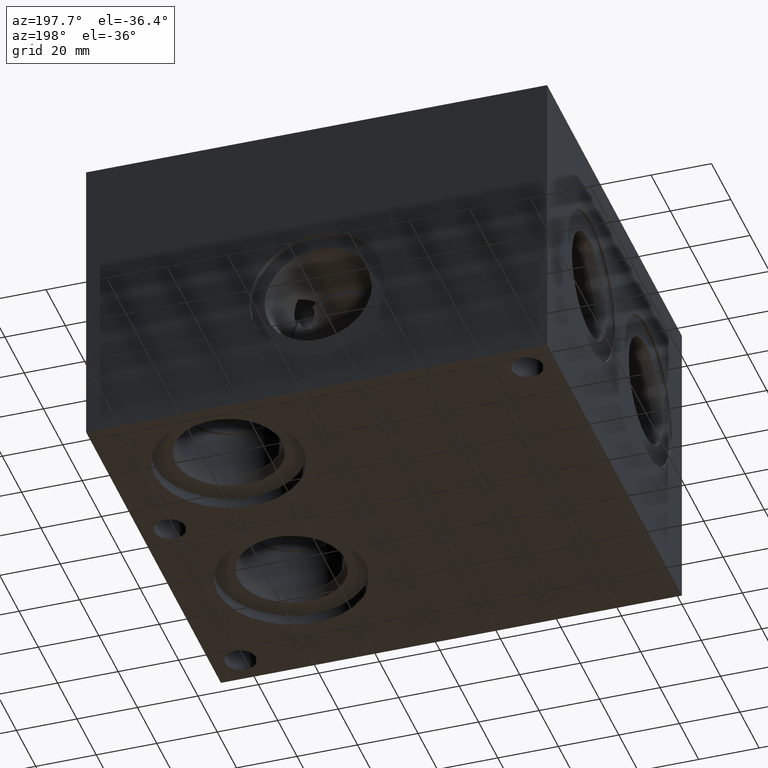
[diagram: clean part render]
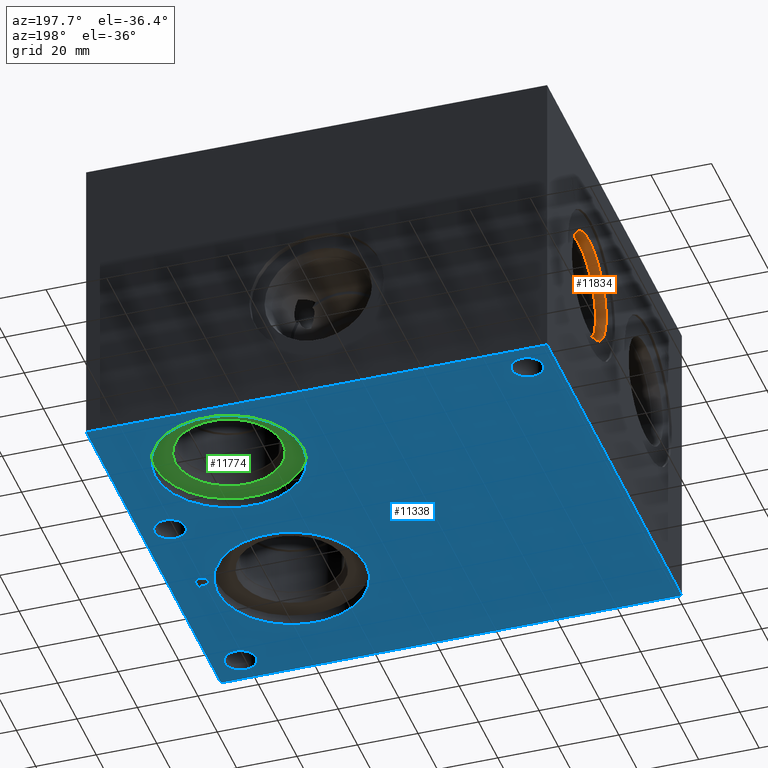
[diagram: same view with three faces highlighted in distinct colors, each labeled with its STEP entity id]
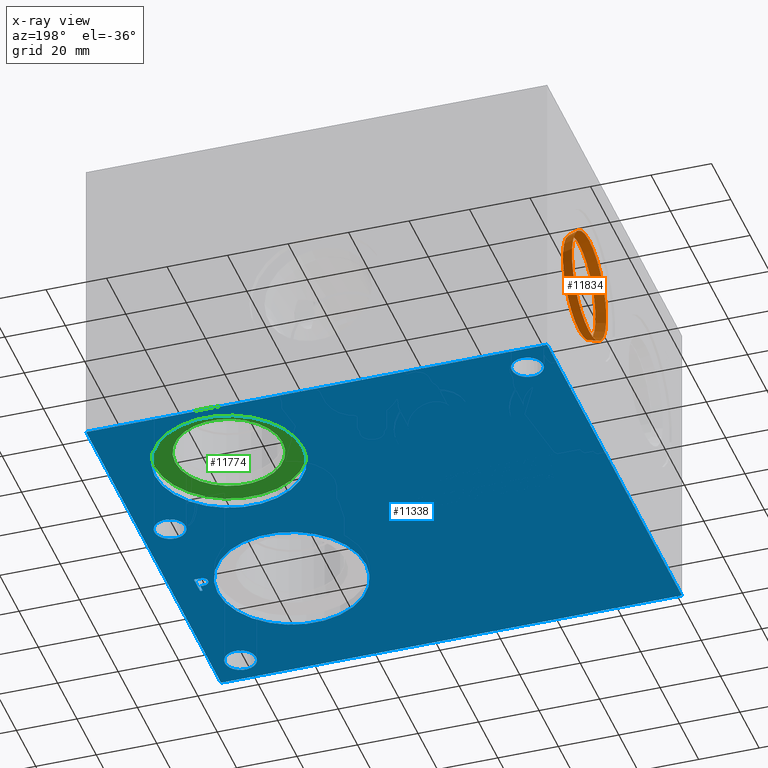
[diagram: x-ray of the same camera — body ghosted, the three highlighted faces saturated]
A machine part, auxiliary view with three faces highlighted in distinct colors.
The next image is the same camera in x-ray (body ghosted, the three faces saturated) — at least one of them is partly hidden behind the body in this view.
Their STEP definitions:

[orange] entity #11834 — the highlighted conical surface has half-angle 15 deg.
#37=CONICAL_SURFACE('',#12439,17.31645,0.261799389532319);
#260=CIRCLE('',#12437,17.7546);
#261=CIRCLE('',#12438,17.7546);
#262=CIRCLE('',#12440,16.8783);
#263=CIRCLE('',#12441,16.8783);
#1371=FACE_OUTER_BOUND('',#2044,.T.);
#2044=EDGE_LOOP('',(#10235,#10236,#10237,#10238,#10239,#10240));
#3188=LINE('',#20089,#4277);
#4277=VECTOR('',#14696,17.31645);
#5600=VERTEX_POINT('',#20083);
#5601=VERTEX_POINT('',#20084);
#5602=VERTEX_POINT('',#20088);
#5603=VERTEX_POINT('',#20090);
#7197=EDGE_CURVE('',#5600,#5601,#260,.T.);
#7198=EDGE_CURVE('',#5601,#5600,#261,.T.);
#7199=EDGE_CURVE('',#5601,#5602,#3188,.T.);
#7200=EDGE_CURVE('',#5602,#5603,#262,.T.);
#7201=EDGE_CURVE('',#5603,#5602,#263,.T.);
#10235=ORIENTED_EDGE('',*,*,#7197,.F.);
#10236=ORIENTED_EDGE('',*,*,#7198,.F.);
#10237=ORIENTED_EDGE('',*,*,#7199,.T.);
#10238=ORIENTED_EDGE('',*,*,#7200,.T.);
#10239=ORIENTED_EDGE('',*,*,#7201,.T.);
#10240=ORIENTED_EDGE('',*,*,#7199,.F.);
#11834=ADVANCED_FACE('',(#1371),#37,.F.);
#12437=AXIS2_PLACEMENT_3D('',#20085,#14690,#14691);
#12438=AXIS2_PLACEMENT_3D('',#20086,#14692,#14693);
#12439=AXIS2_PLACEMENT_3D('',#20087,#14694,#14695);
#12440=AXIS2_PLACEMENT_3D('',#20091,#14697,#14698);
#12441=AXIS2_PLACEMENT_3D('',#20092,#14699,#14700);
#14690=DIRECTION('center_axis',(1.,0.,0.));
#14691=DIRECTION('ref_axis',(0.,0.,-1.));
#14692=DIRECTION('center_axis',(1.,0.,0.));
#14693=DIRECTION('ref_axis',(0.,0.,-1.));
#14694=DIRECTION('center_axis',(-1.,0.,0.));
#14695=DIRECTION('ref_axis',(0.,0.,1.));
#14696=DIRECTION('',(0.965925825840491,-3.16961917193374E-17,0.258819046776634));
#14697=DIRECTION('center_axis',(1.,0.,0.));
#14698=DIRECTION('ref_axis',(0.,0.,-1.));
#14699=DIRECTION('center_axis',(1.,0.,0.));
#14700=DIRECTION('ref_axis',(0.,0.,-1.));
#20083=CARTESIAN_POINT('',(0.7874,93.6752,73.3298));
#20084=CARTESIAN_POINT('',(0.787399999999999,93.6752,37.8206));
#20085=CARTESIAN_POINT('Origin',(0.7874,93.6752,55.5752));
#20086=CARTESIAN_POINT('Origin',(0.7874,93.6752,55.5752));
#20087=CARTESIAN_POINT('Origin',(2.42259805,93.6752,55.5752));
#20088=CARTESIAN_POINT('',(4.0577961,93.6752,38.6969));
#20089=CARTESIAN_POINT('',(2.42259805,93.6752,38.25875));
#20090=CARTESIAN_POINT('',(4.0577961,93.6752,72.4535));
#20091=CARTESIAN_POINT('Origin',(4.0577961,93.6752,55.5752));
#20092=CARTESIAN_POINT('Origin',(4.0577961,93.6752,55.5752));

[blue] entity #11338 — the highlighted planar face has unit normal (0, 0, 1).
#140=CIRCLE('',#11955,5.1562);
#141=CIRCLE('',#11956,5.1562);
#142=CIRCLE('',#11957,5.1562);
#143=CIRCLE('',#11958,24.5618);
#144=CIRCLE('',#11959,24.5618);
#145=CIRCLE('',#11960,24.5618);
#146=CIRCLE('',#11961,24.5618);
#418=FACE_BOUND('',#1487,.T.);
#419=FACE_BOUND('',#1488,.T.);
#420=FACE_BOUND('',#1489,.T.);
#421=FACE_BOUND('',#1490,.T.);
#422=FACE_BOUND('',#1491,.T.);
#423=FACE_BOUND('',#1492,.T.);
#523=PLANE('',#11954);
#875=FACE_OUTER_BOUND('',#1486,.T.);
#1486=EDGE_LOOP('',(#7510,#7511,#7512,#7513));
#1487=EDGE_LOOP('',(#7514));
#1488=EDGE_LOOP('',(#7515));
#1489=EDGE_LOOP('',(#7516));
#1490=EDGE_LOOP('',(#7517,#7518));
#1491=EDGE_LOOP('',(#7519,#7520));
#1492=EDGE_LOOP('',(#7521,#7522,#7523,#7524,#7525,#7526,#7527,#7528,#7529));
#2191=LINE('',#15412,#3280);
#2194=LINE('',#15418,#3283);
#2197=LINE('',#15424,#3286);
#2200=LINE('',#15430,#3289);
#2203=LINE('',#15436,#3292);
#2207=LINE('',#15479,#3296);
#2208=LINE('',#15481,#3297);
#2209=LINE('',#15483,#3298);
#2210=LINE('',#15484,#3299);
#3280=VECTOR('',#12717,10.);
#3283=VECTOR('',#12722,10.);
#3286=VECTOR('',#12727,10.);
#3289=VECTOR('',#12732,10.);
#3292=VECTOR('',#12737,10.);
#3296=VECTOR('',#12745,10.);
#3297=VECTOR('',#12746,10.);
#3298=VECTOR('',#12747,10.);
#3299=VECTOR('',#12748,10.);
#4361=B_SPLINE_CURVE_WITH_KNOTS('',2,(#15379,#15380,#15381,#15382),
 .UNSPECIFIED.,.F.,.F.,(3,1,3),(0.,1.,2.),.UNSPECIFIED.);
#4363=B_SPLINE_CURVE_WITH_KNOTS('',2,(#15400,#15401,#15402,#15403),
 .UNSPECIFIED.,.F.,.F.,(3,1,3),(0.,1.,2.),.UNSPECIFIED.);
#4365=B_SPLINE_CURVE_WITH_KNOTS('',2,(#15449,#15450,#15451,#15452),
 .UNSPECIFIED.,.F.,.F.,(3,1,3),(0.,1.,2.),.UNSPECIFIED.);
#4367=B_SPLINE_CURVE_WITH_KNOTS('',2,(#15467,#15468,#15469,#15470),
 .UNSPECIFIED.,.F.,.F.,(3,1,3),(0.,1.,2.),.UNSPECIFIED.);
#4655=VERTEX_POINT('',#15377);
#4656=VERTEX_POINT('',#15378);
#4659=VERTEX_POINT('',#15399);
#4661=VERTEX_POINT('',#15411);
#4663=VERTEX_POINT('',#15417);
#4665=VERTEX_POINT('',#15423);
#4667=VERTEX_POINT('',#15429);
#4669=VERTEX_POINT('',#15435);
#4671=VERTEX_POINT('',#15448);
#4673=VERTEX_POINT('',#15477);
#4674=VERTEX_POINT('',#15478);
#4675=VERTEX_POINT('',#15480);
#4676=VERTEX_POINT('',#15482);
#4677=VERTEX_POINT('',#15485);
#4678=VERTEX_POINT('',#15487);
#4679=VERTEX_POINT('',#15489);
#4680=VERTEX_POINT('',#15491);
#4681=VERTEX_POINT('',#15492);
#4682=VERTEX_POINT('',#15495);
#4683=VERTEX_POINT('',#15496);
#5796=EDGE_CURVE('',#4655,#4656,#4361,.T.);
#5800=EDGE_CURVE('',#4659,#4655,#4363,.T.);
#5803=EDGE_CURVE('',#4661,#4659,#2191,.T.);
#5806=EDGE_CURVE('',#4663,#4661,#2194,.T.);
#5809=EDGE_CURVE('',#4665,#4663,#2197,.T.);
#5812=EDGE_CURVE('',#4667,#4665,#2200,.T.);
#5815=EDGE_CURVE('',#4669,#4667,#2203,.T.);
#5818=EDGE_CURVE('',#4671,#4669,#4365,.T.);
#5821=EDGE_CURVE('',#4656,#4671,#4367,.T.);
#5823=EDGE_CURVE('',#4673,#4674,#2207,.T.);
#5824=EDGE_CURVE('',#4675,#4673,#2208,.T.);
#5825=EDGE_CURVE('',#4676,#4675,#2209,.T.);
#5826=EDGE_CURVE('',#4674,#4676,#2210,.T.);
#5827=EDGE_CURVE('',#4677,#4677,#140,.T.);
#5828=EDGE_CURVE('',#4678,#4678,#141,.T.);
#5829=EDGE_CURVE('',#4679,#4679,#142,.T.);
#5830=EDGE_CURVE('',#4680,#4681,#143,.T.);
#5831=EDGE_CURVE('',#4681,#4680,#144,.T.);
#5832=EDGE_CURVE('',#4682,#4683,#145,.T.);
#5833=EDGE_CURVE('',#4683,#4682,#146,.T.);
#7510=ORIENTED_EDGE('',*,*,#5823,.F.);
#7511=ORIENTED_EDGE('',*,*,#5824,.F.);
#7512=ORIENTED_EDGE('',*,*,#5825,.F.);
#7513=ORIENTED_EDGE('',*,*,#5826,.F.);
#7514=ORIENTED_EDGE('',*,*,#5827,.T.);
#7515=ORIENTED_EDGE('',*,*,#5828,.T.);
#7516=ORIENTED_EDGE('',*,*,#5829,.T.);
#7517=ORIENTED_EDGE('',*,*,#5830,.T.);
#7518=ORIENTED_EDGE('',*,*,#5831,.T.);
#7519=ORIENTED_EDGE('',*,*,#5832,.T.);
#7520=ORIENTED_EDGE('',*,*,#5833,.T.);
#7521=ORIENTED_EDGE('',*,*,#5796,.T.);
#7522=ORIENTED_EDGE('',*,*,#5821,.T.);
#7523=ORIENTED_EDGE('',*,*,#5818,.T.);
#7524=ORIENTED_EDGE('',*,*,#5815,.T.);
#7525=ORIENTED_EDGE('',*,*,#5812,.T.);
#7526=ORIENTED_EDGE('',*,*,#5809,.T.);
#7527=ORIENTED_EDGE('',*,*,#5806,.T.);
#7528=ORIENTED_EDGE('',*,*,#5803,.T.);
#7529=ORIENTED_EDGE('',*,*,#5800,.T.);
#11338=ADVANCED_FACE('',(#875,#418,#419,#420,#421,#422,#423),#523,.F.);
#11954=AXIS2_PLACEMENT_3D('',#15476,#12743,#12744);
#11955=AXIS2_PLACEMENT_3D('',#15486,#12749,#12750);
#11956=AXIS2_PLACEMENT_3D('',#15488,#12751,#12752);
#11957=AXIS2_PLACEMENT_3D('',#15490,#12753,#12754);
#11958=AXIS2_PLACEMENT_3D('',#15493,#12755,#12756);
#11959=AXIS2_PLACEMENT_3D('',#15494,#12757,#12758);
#11960=AXIS2_PLACEMENT_3D('',#15497,#12759,#12760);
#11961=AXIS2_PLACEMENT_3D('',#15498,#12761,#12762);
#12717=DIRECTION('',(-1.,-1.11355060845355E-14,0.));
#12722=DIRECTION('',(-2.79741238752512E-15,1.,0.));
#12727=DIRECTION('',(1.,2.10488224768655E-14,0.));
#12732=DIRECTION('',(0.,-1.,0.));
#12737=DIRECTION('',(1.,0.,0.));
#12743=DIRECTION('center_axis',(0.,0.,1.));
#12744=DIRECTION('ref_axis',(1.,0.,0.));
#12745=DIRECTION('',(1.,0.,0.));
#12746=DIRECTION('',(0.,-1.,0.));
#12747=DIRECTION('',(-1.,0.,0.));
#12748=DIRECTION('',(0.,1.,0.));
#12749=DIRECTION('center_axis',(0.,0.,1.));
#12750=DIRECTION('ref_axis',(1.,0.,0.));
#12751=DIRECTION('center_axis',(0.,0.,1.));
#12752=DIRECTION('ref_axis',(1.,0.,0.));
#12753=DIRECTION('center_axis',(0.,0.,1.));
#12754=DIRECTION('ref_axis',(1.,0.,0.));
#12755=DIRECTION('center_axis',(0.,0.,1.));
#12756=DIRECTION('ref_axis',(1.,0.,0.));
#12757=DIRECTION('center_axis',(0.,0.,1.));
#12758=DIRECTION('ref_axis',(1.,0.,0.));
#12759=DIRECTION('center_axis',(0.,0.,1.));
#12760=DIRECTION('ref_axis',(1.,0.,0.));
#12761=DIRECTION('center_axis',(0.,0.,1.));
#12762=DIRECTION('ref_axis',(1.,0.,0.));
#15377=CARTESIAN_POINT('',(140.561932797641,54.3725181439707,0.));
#15378=CARTESIAN_POINT('',(139.805490345468,52.8544873726039,0.));
#15379=CARTESIAN_POINT('Ctrl Pts',(140.561932797641,54.3725181439707,0.));
#15380=CARTESIAN_POINT('Ctrl Pts',(140.206867973151,54.1306623939563,0.));
#15381=CARTESIAN_POINT('Ctrl Pts',(139.805490345468,53.3845116758269,0.));
#15382=CARTESIAN_POINT('Ctrl Pts',(139.805490345468,52.8544873726039,0.));
#15399=CARTESIAN_POINT('',(142.224047845612,54.7687499046325,0.));
#15400=CARTESIAN_POINT('Ctrl Pts',(142.224047845612,54.7687499046325,0.));
#15401=CARTESIAN_POINT('Ctrl Pts',(141.658002473238,54.7687499046325,0.));
#15402=CARTESIAN_POINT('Ctrl Pts',(140.865538951914,54.5834986918556,0.));
#15403=CARTESIAN_POINT('Ctrl Pts',(140.561932797641,54.3725181439707,0.));
#15411=CARTESIAN_POINT('',(143.819266622302,54.7687499046326,0.));
#15412=CARTESIAN_POINT('',(110.009633311151,54.7687499046322,0.));
#15417=CARTESIAN_POINT('',(143.819266622302,48.41875,0.));
#15418=CARTESIAN_POINT('',(143.819266622302,59.1343750000001,0.));
#15423=CARTESIAN_POINT('',(142.975344430763,48.41875,0.));
#15424=CARTESIAN_POINT('',(109.587672215382,48.4187499999993,0.));
#15429=CARTESIAN_POINT('',(142.975344430763,50.7858488299278,0.));
#15430=CARTESIAN_POINT('',(142.975344430763,60.3179244149639,0.));
#15435=CARTESIAN_POINT('',(142.260068914763,50.7858488299278,0.));
#15436=CARTESIAN_POINT('',(109.230034457381,50.7858488299278,0.));
#15448=CARTESIAN_POINT('',(140.361243983799,51.4445198086904,0.));
#15449=CARTESIAN_POINT('Ctrl Pts',(140.361243983799,51.4445198086904,0.));
#15450=CARTESIAN_POINT('Ctrl Pts',(140.69057947318,51.1203301863307,0.));
#15451=CARTESIAN_POINT('Ctrl Pts',(141.580814467914,50.7858488299278,0.));
#15452=CARTESIAN_POINT('Ctrl Pts',(142.260068914763,50.7858488299278,0.));
#15467=CARTESIAN_POINT('Ctrl Pts',(139.805490345468,52.8544873726039,0.));
#15468=CARTESIAN_POINT('Ctrl Pts',(139.805490345468,52.4428180108773,0.));
#15469=CARTESIAN_POINT('Ctrl Pts',(140.098804765698,51.7018131597695,0.));
#15470=CARTESIAN_POINT('Ctrl Pts',(140.361243983799,51.4445198086904,0.));
#15476=CARTESIAN_POINT('Origin',(76.2,69.85,0.));
#15477=CARTESIAN_POINT('',(0.,0.,0.));
#15478=CARTESIAN_POINT('',(152.4,0.,0.));
#15479=CARTESIAN_POINT('',(0.,0.,0.));
#15480=CARTESIAN_POINT('',(0.,139.7,0.));
#15481=CARTESIAN_POINT('',(0.,139.7,0.));
#15482=CARTESIAN_POINT('',(152.4,139.7,0.));
#15483=CARTESIAN_POINT('',(152.4,139.7,0.));
#15484=CARTESIAN_POINT('',(152.4,0.,0.));
#15485=CARTESIAN_POINT('',(4.3688,130.175,0.));
#15486=CARTESIAN_POINT('Origin',(9.525,130.175,0.));
#15487=CARTESIAN_POINT('',(137.7188,9.525,0.));
#15488=CARTESIAN_POINT('Origin',(142.875,9.525,0.));
#15489=CARTESIAN_POINT('',(137.7188,82.55,0.));
#15490=CARTESIAN_POINT('Origin',(142.875,82.55,0.));
#15491=CARTESIAN_POINT('',(138.8618,46.0248,0.));
#15492=CARTESIAN_POINT('',(89.7382,46.0248,0.));
#15493=CARTESIAN_POINT('Origin',(114.3,46.0248,0.));
#15494=CARTESIAN_POINT('Origin',(114.3,46.0248,0.));
#15495=CARTESIAN_POINT('',(138.8618,111.125,0.));
#15496=CARTESIAN_POINT('',(89.7382,111.125,0.));
#15497=CARTESIAN_POINT('Origin',(114.3,111.125,0.));
#15498=CARTESIAN_POINT('Origin',(114.3,111.125,0.));

[green] entity #11774 — the highlighted planar face has unit normal (0, 0, 1).
#159=CIRCLE('',#12276,24.5618);
#160=CIRCLE('',#12277,24.5618);
#161=CIRCLE('',#12279,17.7546);
#162=CIRCLE('',#12280,17.7546);
#469=FACE_BOUND('',#1974,.T.);
#825=PLANE('',#12278);
#1311=FACE_OUTER_BOUND('',#1973,.T.);
#1973=EDGE_LOOP('',(#9913,#9914));
#1974=EDGE_LOOP('',(#9915,#9916));
#5490=VERTEX_POINT('',#19673);
#5491=VERTEX_POINT('',#19675);
#5492=VERTEX_POINT('',#19679);
#5493=VERTEX_POINT('',#19680);
#7039=EDGE_CURVE('',#5490,#5491,#159,.T.);
#7040=EDGE_CURVE('',#5491,#5490,#160,.T.);
#7041=EDGE_CURVE('',#5492,#5493,#161,.T.);
#7042=EDGE_CURVE('',#5493,#5492,#162,.T.);
#9913=ORIENTED_EDGE('',*,*,#7040,.F.);
#9914=ORIENTED_EDGE('',*,*,#7039,.F.);
#9915=ORIENTED_EDGE('',*,*,#7041,.T.);
#9916=ORIENTED_EDGE('',*,*,#7042,.T.);
#11774=ADVANCED_FACE('',(#1311,#469),#825,.F.);
#12276=AXIS2_PLACEMENT_3D('',#19676,#14318,#14319);
#12277=AXIS2_PLACEMENT_3D('',#19677,#14320,#14321);
#12278=AXIS2_PLACEMENT_3D('',#19678,#14322,#14323);
#12279=AXIS2_PLACEMENT_3D('',#19681,#14324,#14325);
#12280=AXIS2_PLACEMENT_3D('',#19682,#14326,#14327);
#14318=DIRECTION('center_axis',(0.,0.,1.));
#14319=DIRECTION('ref_axis',(1.,0.,0.));
#14320=DIRECTION('center_axis',(0.,0.,1.));
#14321=DIRECTION('ref_axis',(1.,0.,0.));
#14322=DIRECTION('center_axis',(0.,0.,1.));
#14323=DIRECTION('ref_axis',(1.,0.,0.));
#14324=DIRECTION('center_axis',(0.,0.,1.));
#14325=DIRECTION('ref_axis',(1.,0.,0.));
#14326=DIRECTION('center_axis',(0.,0.,1.));
#14327=DIRECTION('ref_axis',(1.,0.,0.));
#19673=CARTESIAN_POINT('',(89.7382,111.125,3.556));
#19675=CARTESIAN_POINT('',(138.8618,111.125,3.556));
#19676=CARTESIAN_POINT('Origin',(114.3,111.125,3.556));
#19677=CARTESIAN_POINT('Origin',(114.3,111.125,3.556));
#19678=CARTESIAN_POINT('Origin',(132.0546,111.125,3.556));
#19679=CARTESIAN_POINT('',(132.0546,111.125,3.556));
#19680=CARTESIAN_POINT('',(96.5454,111.125,3.556));
#19681=CARTESIAN_POINT('Origin',(114.3,111.125,3.556));
#19682=CARTESIAN_POINT('Origin',(114.3,111.125,3.556));